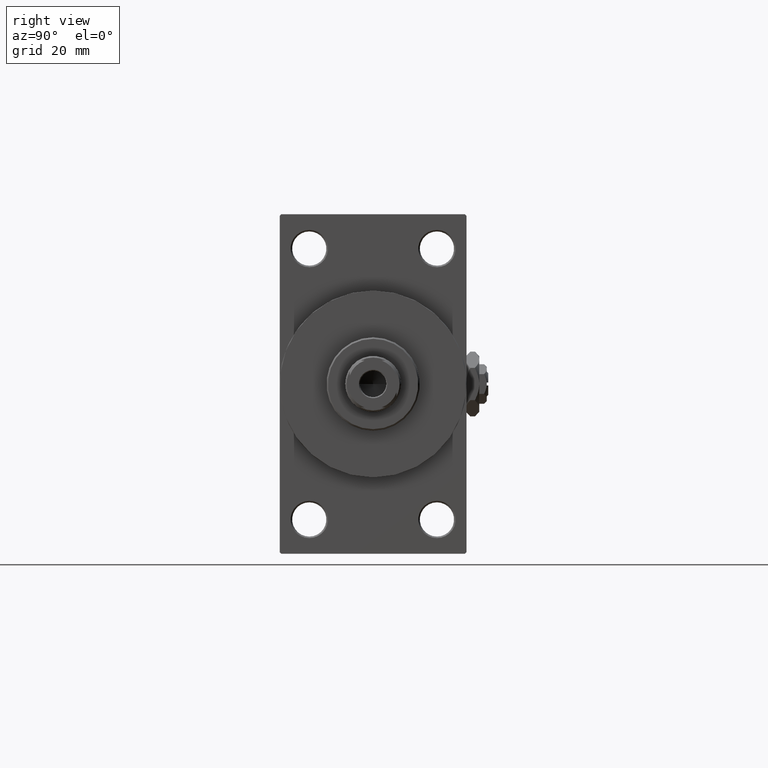
[diagram: clean part render]
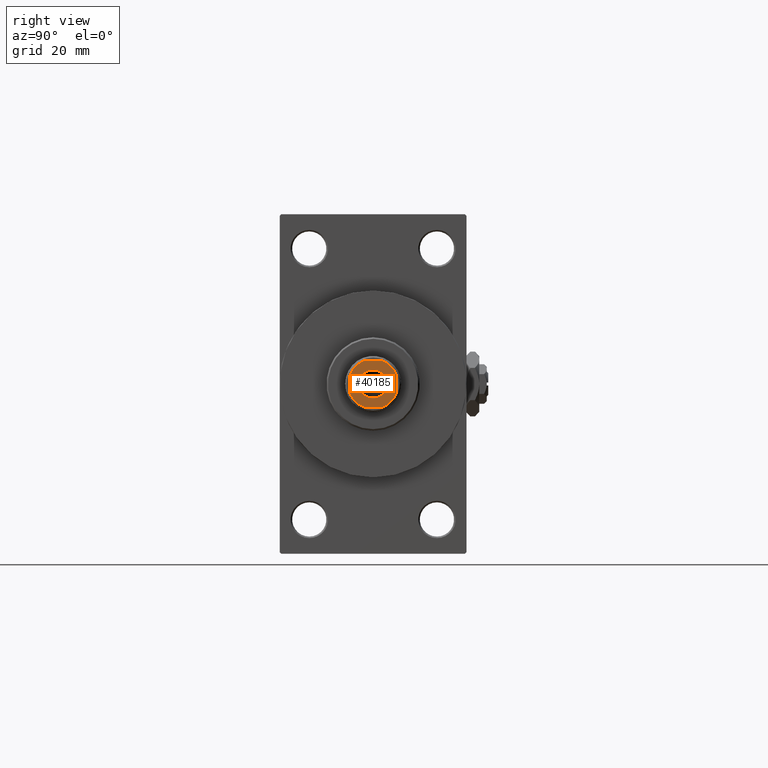
[diagram: same view with one face highlighted and labeled with its STEP entity id]
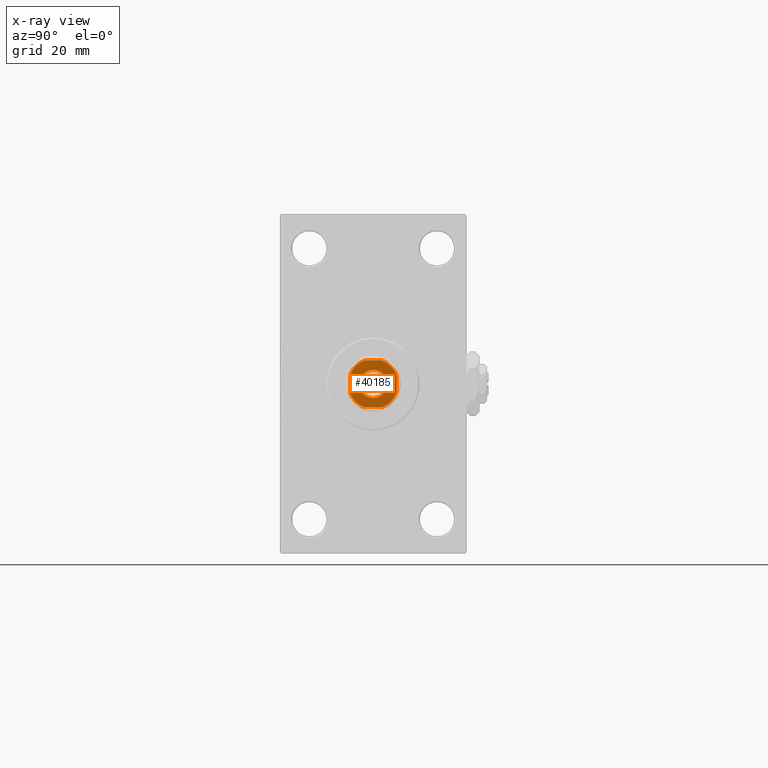
[diagram: x-ray of the same camera — body ghosted, the highlighted face saturated]
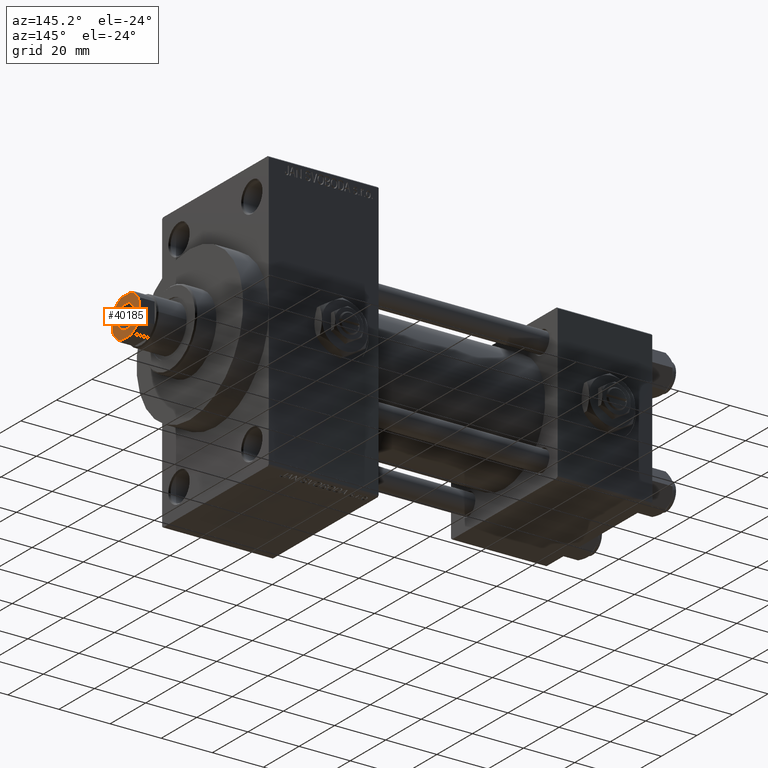
[diagram: same view with one face highlighted and labeled with its STEP entity id]
A machine part, right view. The second image highlights one B-rep face of the part: STEP entity #40185.
The next image is the same camera in x-ray: the body ghosted, the highlighted face saturated — about 0% of this face is hidden behind the body in this view.
A second angle (auxiliary view) of the same face is appended — the face is thin or edge-on in the first view.
In plain terms, the highlighted planar face has unit normal (1, 0, 0).
Its self-contained STEP definition (entity closure, byte-faithful):
#88 = EDGE_CURVE ( 'NONE', #7640, #28777, #18358, .T. ) ;
#204 = CARTESIAN_POINT ( 'NONE',  ( -2.783882181415127555, -7.500000000000000000, 148.0000000000000000 ) ) ;
#440 = LINE ( 'NONE', #3928, #46868 ) ;
#707 = VECTOR ( 'NONE', #41595, 1000.000000000000000 ) ;
#1068 = DIRECTION ( 'NONE',  ( 0.000000000000000000, -0.000000000000000000, -1.000000000000000000 ) ) ;
#1095 = DIRECTION ( 'NONE',  ( -0.000000000000000000, 0.000000000000000000, 1.000000000000000000 ) ) ;
#2486 = VECTOR ( 'NONE', #43958, 1000.000000000000000 ) ;
#2816 = LINE ( 'NONE', #21509, #2486 ) ;
#3403 = DIRECTION ( 'NONE',  ( -0.000000000000000000, 0.000000000000000000, 1.000000000000000000 ) ) ;
#3868 = EDGE_CURVE ( 'NONE', #28168, #25684, #29537, .T. ) ;
#3928 = CARTESIAN_POINT ( 'NONE',  ( 7.500000000000000000, 7.500000000000000000, 148.0000000000000000 ) ) ;
#4101 = FACE_BOUND ( 'NONE', #37590, .T. ) ;
#4590 = EDGE_CURVE ( 'NONE', #20216, #28168, #2816, .T. ) ;
#4848 = ORIENTED_EDGE ( 'NONE', *, *, #16549, .T. ) ;
#4909 = CARTESIAN_POINT ( 'NONE',  ( -2.783882181415123558, 7.499999999999999112, 148.0000000000000000 ) ) ;
#5104 = ORIENTED_EDGE ( 'NONE', *, *, #44671, .T. ) ;
#5378 = EDGE_LOOP ( 'NONE', ( #42676, #4848, #49041, #38115, #41628, #21555, #5104, #20802 ) ) ;
#5501 = ORIENTED_EDGE ( 'NONE', *, *, #88, .T. ) ;
#6553 = DIRECTION ( 'NONE',  ( -0.000000000000000000, 0.000000000000000000, 1.000000000000000000 ) ) ;
#6783 = DIRECTION ( 'NONE',  ( 1.000000000000000000, 0.000000000000000000, 0.000000000000000000 ) ) ;
#6962 = LINE ( 'NONE', #33628, #707 ) ;
#7640 = VERTEX_POINT ( 'NONE', #47325 ) ;
#8098 = DIRECTION ( 'NONE',  ( 1.000000000000000000, 0.000000000000000000, 0.000000000000000000 ) ) ;
#9302 = DIRECTION ( 'NONE',  ( 1.000000000000000000, 0.000000000000000000, 0.000000000000000000 ) ) ;
#9933 = CARTESIAN_POINT ( 'NONE',  ( 7.500000000000000888, 2.783882181415040513, 148.0000000000000000 ) ) ;
#11352 = VERTEX_POINT ( 'NONE', #9933 ) ;
#11829 = FACE_OUTER_BOUND ( 'NONE', #5378, .T. ) ;
#11940 = ORIENTED_EDGE ( 'NONE', *, *, #17135, .T. ) ;
#12058 = CARTESIAN_POINT ( 'NONE',  ( 2.783882181415044066, 7.499999999999999112, 148.0000000000000000 ) ) ;
#13096 = CARTESIAN_POINT ( 'NONE',  ( 0.000000000000000000, 0.000000000000000000, 148.0000000000000000 ) ) ;
#13113 = AXIS2_PLACEMENT_3D ( 'NONE', #13096, #45840, #16328 ) ;
#13491 = CARTESIAN_POINT ( 'NONE',  ( 4.550000000000012257, 0.000000000000000000, 148.0000000000000000 ) ) ;
#13618 = VECTOR ( 'NONE', #22848, 1000.000000000000000 ) ;
#13986 = AXIS2_PLACEMENT_3D ( 'NONE', #22947, #33439, #6783 ) ;
#16328 = DIRECTION ( 'NONE',  ( 1.000000000000000000, 0.000000000000000000, 0.000000000000000000 ) ) ;
#16549 = EDGE_CURVE ( 'NONE', #11352, #17308, #33842, .T. ) ;
#17015 = CARTESIAN_POINT ( 'NONE',  ( 0.000000000000000000, 0.000000000000000000, 148.0000000000000000 ) ) ;
#17135 = EDGE_CURVE ( 'NONE', #28777, #7640, #34612, .T. ) ;
#17257 = CARTESIAN_POINT ( 'NONE',  ( 0.000000000000000000, 0.000000000000000000, 148.0000000000000000 ) ) ;
#17308 = VERTEX_POINT ( 'NONE', #12058 ) ;
#18358 = CIRCLE ( 'NONE', #44622, 4.550000000000012257 ) ;
#18361 = DIRECTION ( 'NONE',  ( 1.000000000000000000, 0.000000000000000000, 0.000000000000000000 ) ) ;
#19540 = CIRCLE ( 'NONE', #13986, 8.000000000000010658 ) ;
#20216 = VERTEX_POINT ( 'NONE', #43052 ) ;
#20277 = VERTEX_POINT ( 'NONE', #38807 ) ;
#20802 = ORIENTED_EDGE ( 'NONE', *, *, #43484, .T. ) ;
#21169 = CARTESIAN_POINT ( 'NONE',  ( -7.499999999999997335, -2.783882181415132884, 148.0000000000000000 ) ) ;
#21509 = CARTESIAN_POINT ( 'NONE',  ( -7.500000000000000000, 7.499999999999998224, 148.0000000000000000 ) ) ;
#21555 = ORIENTED_EDGE ( 'NONE', *, *, #3868, .T. ) ;
#22848 = DIRECTION ( 'NONE',  ( -1.000000000000000000, -1.156482317317871478E-16, -0.000000000000000000 ) ) ;
#22947 = CARTESIAN_POINT ( 'NONE',  ( 0.000000000000000000, 0.000000000000000000, 148.0000000000000000 ) ) ;
#25684 = VERTEX_POINT ( 'NONE', #204 ) ;
#25878 = AXIS2_PLACEMENT_3D ( 'NONE', #39208, #35474, #43206 ) ;
#28168 = VERTEX_POINT ( 'NONE', #21169 ) ;
#28777 = VERTEX_POINT ( 'NONE', #13491 ) ;
#29537 = CIRCLE ( 'NONE', #31913, 8.000000000000040856 ) ;
#31913 = AXIS2_PLACEMENT_3D ( 'NONE', #17015, #6553, #9302 ) ;
#32478 = DIRECTION ( 'NONE',  ( 1.000000000000000000, 0.000000000000000000, 0.000000000000000000 ) ) ;
#32821 = CIRCLE ( 'NONE', #33634, 8.000000000000039080 ) ;
#33439 = DIRECTION ( 'NONE',  ( -0.000000000000000000, 0.000000000000000000, 1.000000000000000000 ) ) ;
#33628 = CARTESIAN_POINT ( 'NONE',  ( -7.499999999999998224, -7.500000000000000000, 148.0000000000000000 ) ) ;
#33634 = AXIS2_PLACEMENT_3D ( 'NONE', #44794, #3403, #18361 ) ;
#33842 = CIRCLE ( 'NONE', #25878, 8.000000000000010658 ) ;
#34446 = AXIS2_PLACEMENT_3D ( 'NONE', #38502, #1095, #8098 ) ;
#34612 = CIRCLE ( 'NONE', #13113, 4.550000000000012257 ) ;
#35301 = CARTESIAN_POINT ( 'NONE',  ( 2.783882181415042290, -7.500000000000000000, 148.0000000000000000 ) ) ;
#35474 = DIRECTION ( 'NONE',  ( -0.000000000000000000, 0.000000000000000000, 1.000000000000000000 ) ) ;
#35675 = EDGE_CURVE ( 'NONE', #43790, #20216, #32821, .T. ) ;
#36512 = EDGE_CURVE ( 'NONE', #17308, #43790, #41067, .T. ) ;
#37080 = CARTESIAN_POINT ( 'NONE',  ( -7.500000000000000000, 7.499999999999998224, 148.0000000000000000 ) ) ;
#37590 = EDGE_LOOP ( 'NONE', ( #11940, #5501 ) ) ;
#38115 = ORIENTED_EDGE ( 'NONE', *, *, #35675, .T. ) ;
#38480 = VERTEX_POINT ( 'NONE', #35301 ) ;
#38502 = CARTESIAN_POINT ( 'NONE',  ( 0.000000000000000000, 0.000000000000000000, 148.0000000000000000 ) ) ;
#38807 = CARTESIAN_POINT ( 'NONE',  ( 7.500000000000000888, -2.783882181415038737, 148.0000000000000000 ) ) ;
#39208 = CARTESIAN_POINT ( 'NONE',  ( 0.000000000000000000, 0.000000000000000000, 148.0000000000000000 ) ) ;
#40185 = ADVANCED_FACE ( 'NONE', ( #4101, #11829 ), #46480, .T. ) ;
#41067 = LINE ( 'NONE', #37080, #13618 ) ;
#41108 = DIRECTION ( 'NONE',  ( -1.156482317317871478E-16, 1.000000000000000000, -0.000000000000000000 ) ) ;
#41595 = DIRECTION ( 'NONE',  ( 1.000000000000000000, 0.000000000000000000, 0.000000000000000000 ) ) ;
#41628 = ORIENTED_EDGE ( 'NONE', *, *, #4590, .T. ) ;
#42676 = ORIENTED_EDGE ( 'NONE', *, *, #44655, .T. ) ;
#43052 = CARTESIAN_POINT ( 'NONE',  ( -7.499999999999999112, 2.783882181415124002, 148.0000000000000000 ) ) ;
#43206 = DIRECTION ( 'NONE',  ( 1.000000000000000000, 0.000000000000000000, 0.000000000000000000 ) ) ;
#43484 = EDGE_CURVE ( 'NONE', #38480, #20277, #19540, .T. ) ;
#43790 = VERTEX_POINT ( 'NONE', #4909 ) ;
#43958 = DIRECTION ( 'NONE',  ( 1.156482317317871725E-16, -1.000000000000000000, 0.000000000000000000 ) ) ;
#44622 = AXIS2_PLACEMENT_3D ( 'NONE', #17257, #1068, #32478 ) ;
#44655 = EDGE_CURVE ( 'NONE', #20277, #11352, #440, .T. ) ;
#44671 = EDGE_CURVE ( 'NONE', #25684, #38480, #6962, .T. ) ;
#44794 = CARTESIAN_POINT ( 'NONE',  ( 0.000000000000000000, 0.000000000000000000, 148.0000000000000000 ) ) ;
#45840 = DIRECTION ( 'NONE',  ( 0.000000000000000000, -0.000000000000000000, -1.000000000000000000 ) ) ;
#46480 = PLANE ( 'NONE',  #34446 ) ;
#46868 = VECTOR ( 'NONE', #41108, 1000.000000000000000 ) ;
#47325 = CARTESIAN_POINT ( 'NONE',  ( -4.550000000000012257, 5.572142936120472118E-16, 148.0000000000000000 ) ) ;
#49041 = ORIENTED_EDGE ( 'NONE', *, *, #36512, .T. ) ;